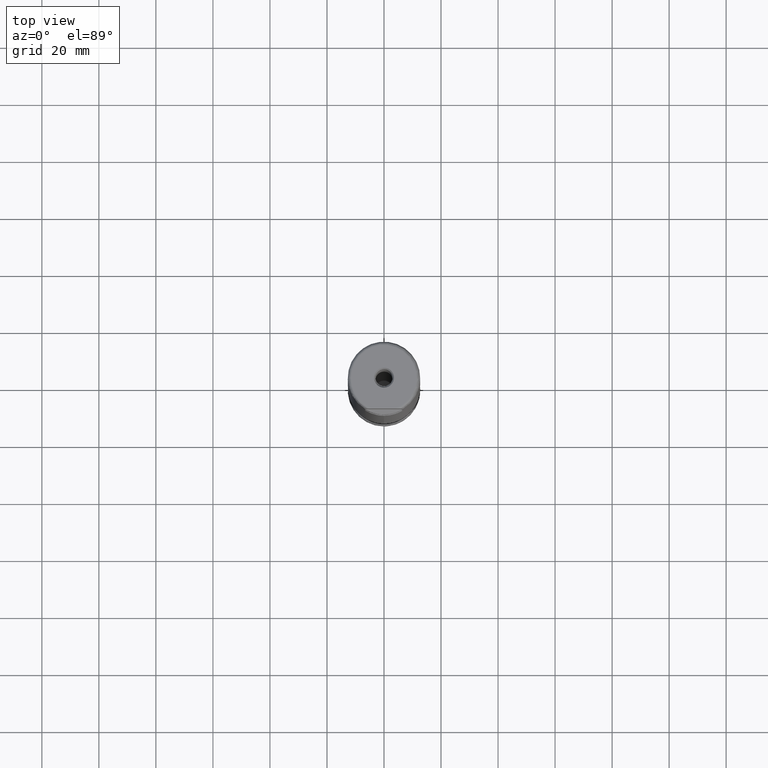
[diagram: clean part render]
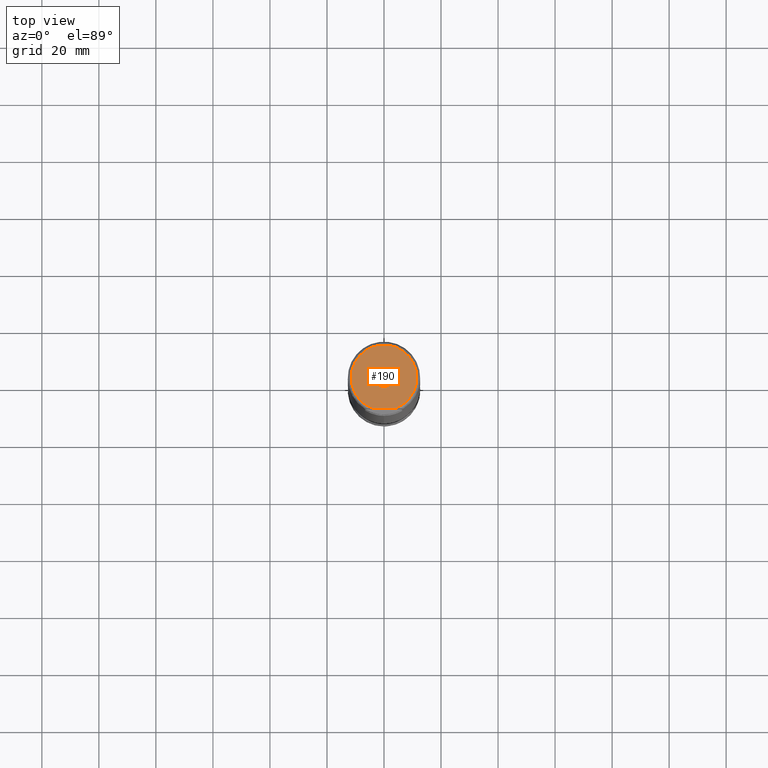
[diagram: same view with one face highlighted and labeled with its STEP entity id]
A machine part, top view. The second image highlights one B-rep face of the part: STEP entity #190.
In plain terms, the highlighted planar face has unit normal (0, 0, 1).
Its self-contained STEP definition (entity closure, byte-faithful):
#190=ADVANCED_FACE('',(#287,#288),#241,.T.);
#241=PLANE('',#813);
#249=LINE('',#1289,#268);
#268=VECTOR('',#892,1.);
#287=FACE_BOUND('',#368,.T.);
#288=FACE_BOUND('',#369,.T.);
#368=EDGE_LOOP('',(#458));
#369=EDGE_LOOP('',(#459,#460));
#458=ORIENTED_EDGE('',*,*,#654,.T.);
#459=ORIENTED_EDGE('',*,*,#655,.T.);
#460=ORIENTED_EDGE('',*,*,#656,.T.);
#594=VERTEX_POINT('',#1285);
#595=VERTEX_POINT('',#1287);
#596=VERTEX_POINT('',#1288);
#654=EDGE_CURVE('',#594,#594,#722,.T.);
#655=EDGE_CURVE('',#595,#596,#723,.T.);
#656=EDGE_CURVE('',#596,#595,#249,.T.);
#722=CIRCLE('',#811,3.5);
#723=CIRCLE('',#812,11.5);
#811=AXIS2_PLACEMENT_3D('',#1284,#888,#889);
#812=AXIS2_PLACEMENT_3D('',#1286,#890,#891);
#813=AXIS2_PLACEMENT_3D('',#1290,#893,#894);
#888=DIRECTION('',(0.,-1.17145536458252E-15,-1.));
#889=DIRECTION('',(0.,-1.,0.));
#890=DIRECTION('',(0.,1.17145536458252E-15,1.));
#891=DIRECTION('',(0.,-1.,0.));
#892=DIRECTION('',(1.,-1.37230767120917E-30,-1.17145536458252E-15));
#893=DIRECTION('',(0.,1.17145536458252E-15,1.));
#894=DIRECTION('',(0.,-1.,1.16573417585641E-15));
#1284=CARTESIAN_POINT('',(0.,2.97549662603961E-13,254.));
#1285=CARTESIAN_POINT('',(0.,-3.4999999999997,254.));
#1286=CARTESIAN_POINT('',(0.,2.97549662603961E-13,254.));
#1287=CARTESIAN_POINT('',(3.96459014273691,-10.7949999999997,254.));
#1288=CARTESIAN_POINT('',(-3.96459014274939,-10.7949999999997,254.));
#1289=CARTESIAN_POINT('',(19.,-10.7949999999997,254.));
#1290=CARTESIAN_POINT('',(0.,2.97549662603961E-13,254.));